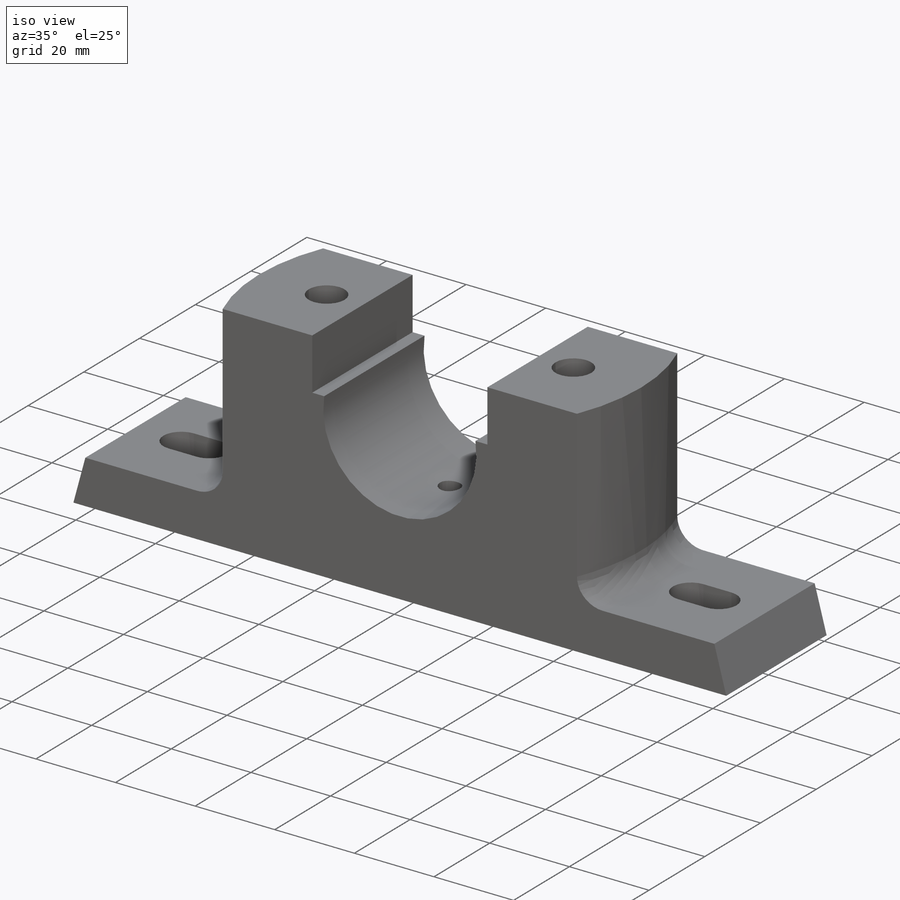
[diagram: iso view]
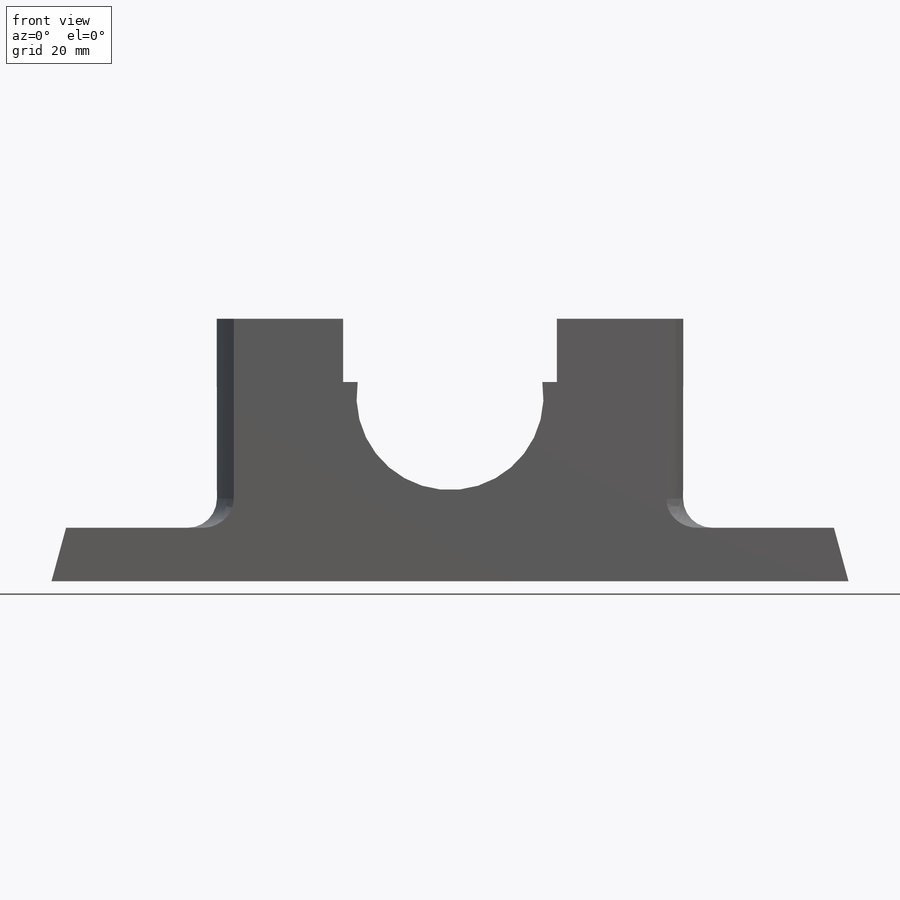
[diagram: front view]
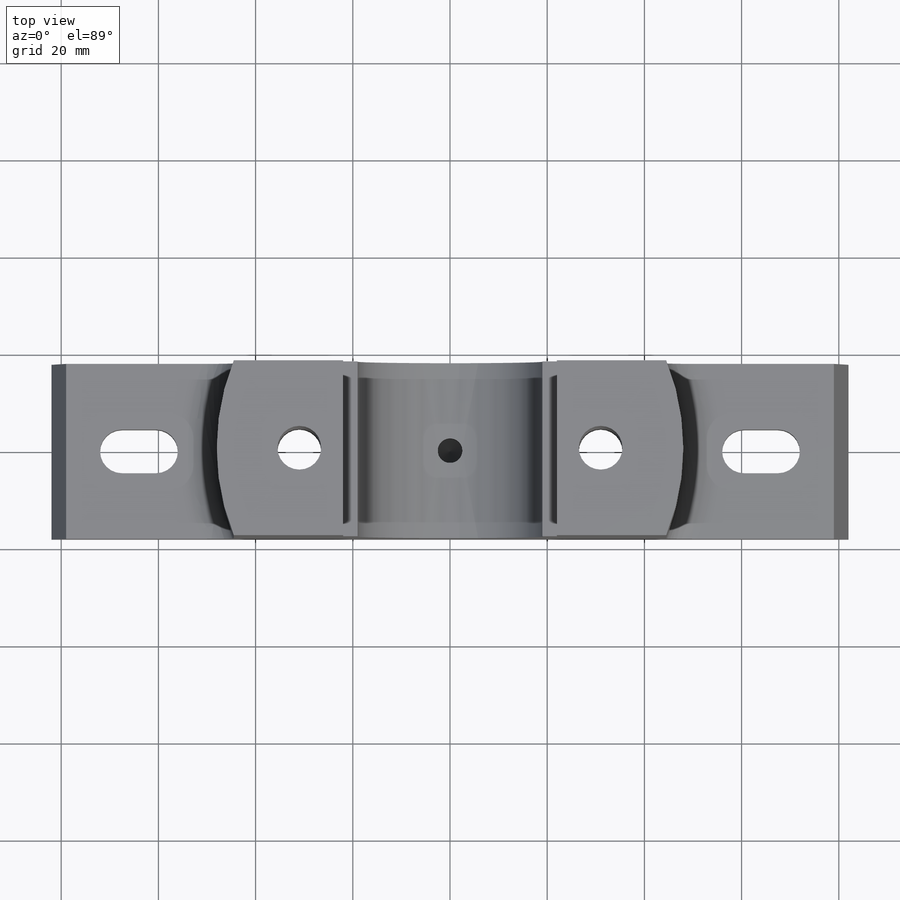
[diagram: top view]
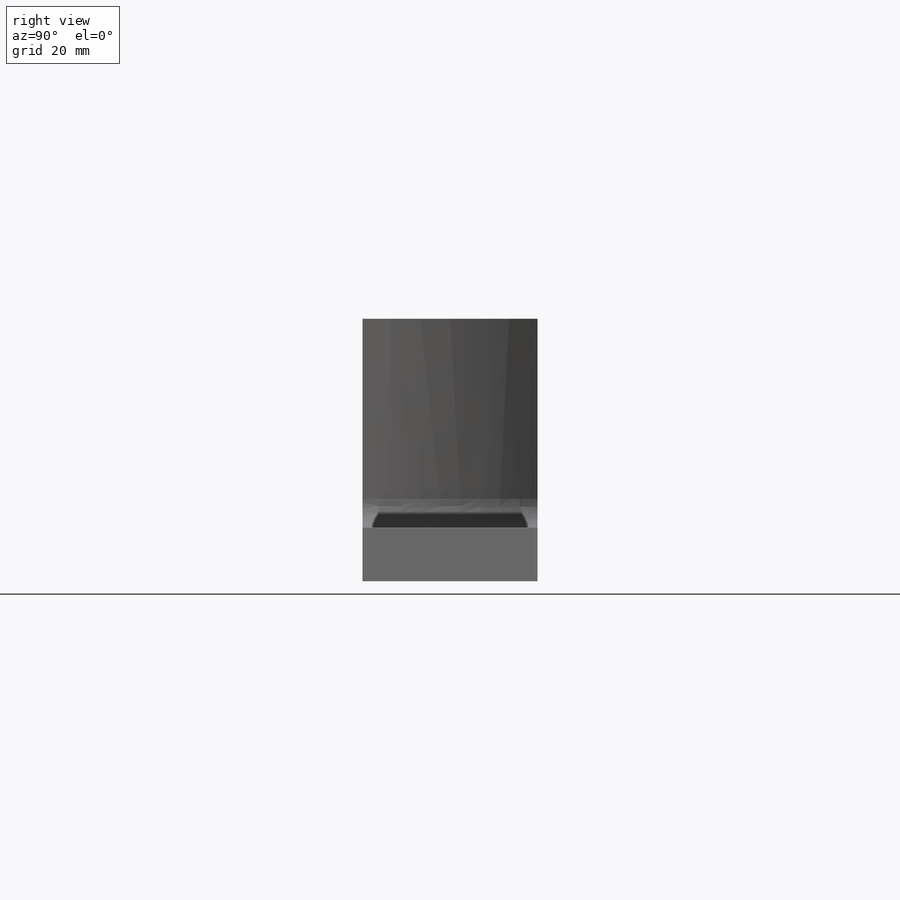
[diagram: right view]
SOLIDWORKS PART (.sldprt)
format: sldprt  version: not decoded by parser v0  size: 243,712 bytes
history: native  units: mm
features: sketch x6, cut_extrude x4, material x1, extrude x1, fillet x1, cut_revolve x1 (+12 scaffold rows collapsed)
feature tree (26):
  scaffold x12  (default folders/planes/origin — collapsed)
  material  "Material <not specified>"
  sketch  "Sketch1"  dims[c1.D2=38.0mm c1.D6=19.0mm c1.D1=44.0mm c1.D3=13.0mm c1.D4=37.0mm c1.D5=82.0mm c2.D6=55.0mm c2.D1=13.0mm c2.D3=16.0mm c2.D2=54.0mm c3.D6=11.0mm c3.D7=3.0mm c3.D8=84.0mm c3.D5=96.0mm c4.D8=176.0mm c4.D4=164.0mm c5.D8=44.0mm c5.D9=38.0mm c5.D6=~60.05122deg]
  extrude  "Boss-Extrude1"  Depth=36mm
  sketch  "Sketch2"  dims[D1=96.0mm]
  cut_extrude  "Cut-Extrude1"  [1 undecoded]
  fillet  "Fillet1"  Radius=6mm
  sketch  "Sketch3"  dims[D1=31.0mm D2=62.0mm]
  cut_extrude  "Cut-Extrude2"  [1 undecoded]
  sketch  "Sketch4"  dims[c1.D1=~4.724944mm c2.D1=45.0deg c2.D2=6.0mm]
  cut_revolve  "Cut-Revolve1"  Angle=360deg
  sketch  "Sketch5"  dims[D1=20.0mm D2=20.0mm]
  cut_extrude  "Cut-Extrude3"  Depth=8mm
  sketch  "Sketch6"  dims[c1.D1=~4.036541mm c1.D3=4.5mm c2.D1=16.0mm c2.D2=64.0mm c3.D1=16.0mm]
  cut_extrude  "Cut-Extrude4"  [1 undecoded]
decode coverage: 10 of 13 modeling features carry decoded parameters
note: ~ marks probable driven/reference dimensions
note: 3 parameter values undecoded
summary: no parameter record found for 3 features
note: suppression state not decoded; provenance and decode notes live in map.json
